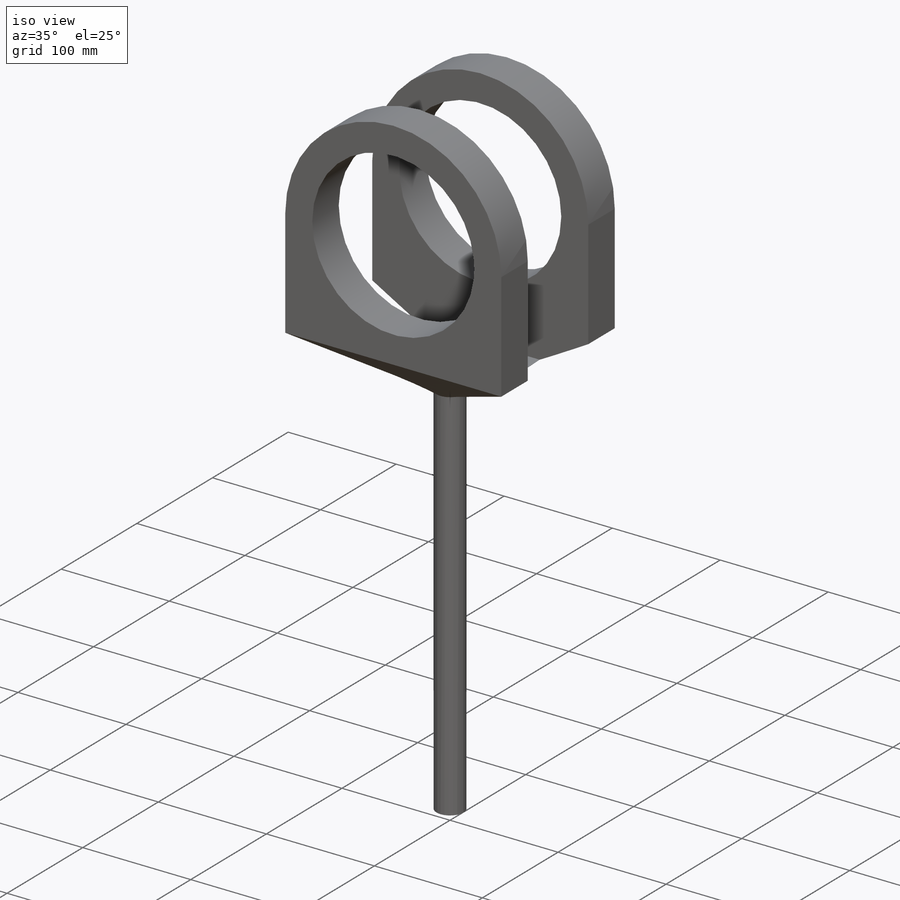
[diagram: iso view]
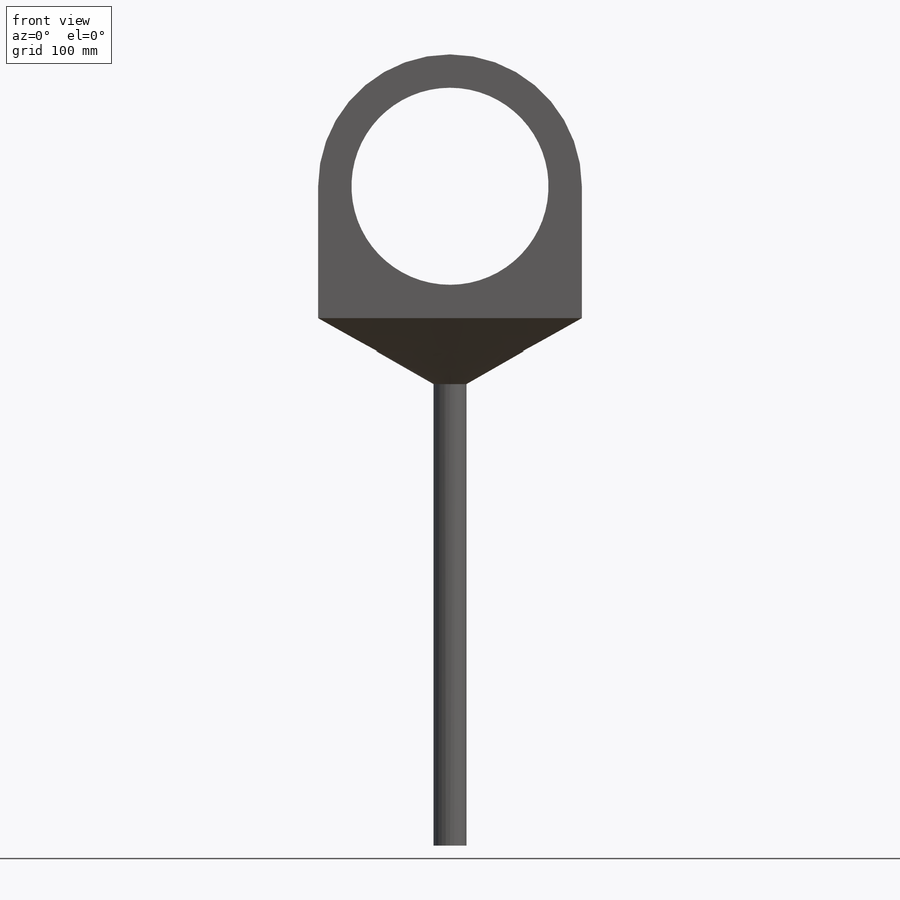
[diagram: front view]
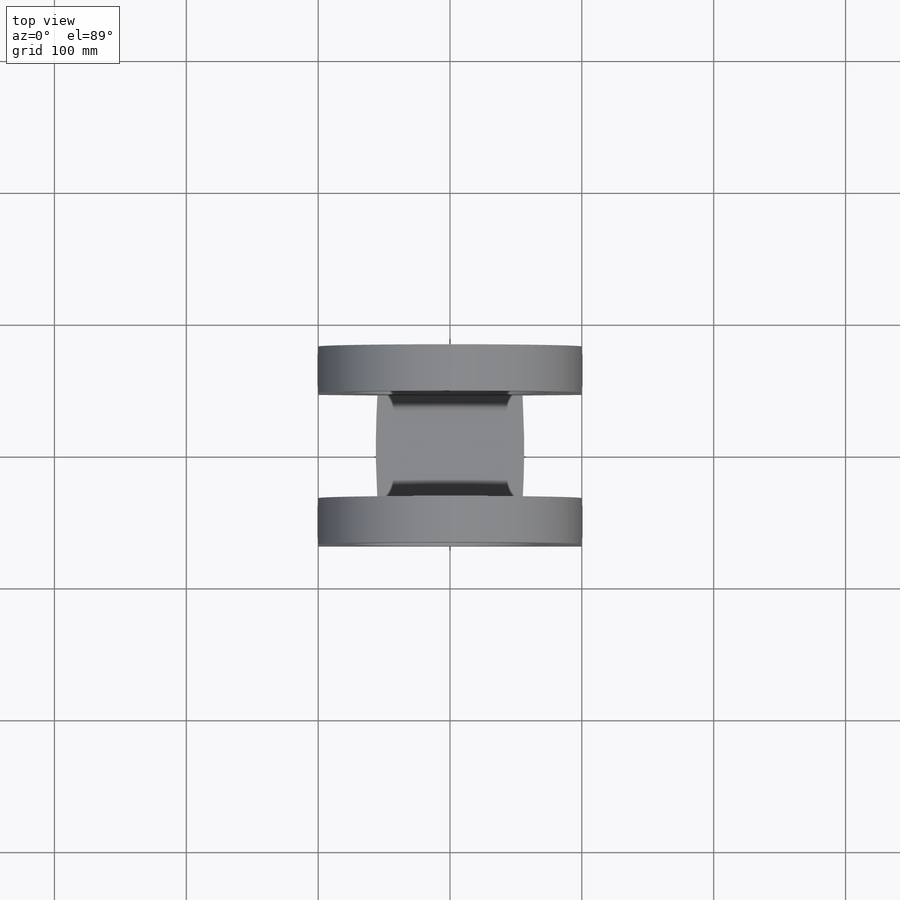
[diagram: top view]
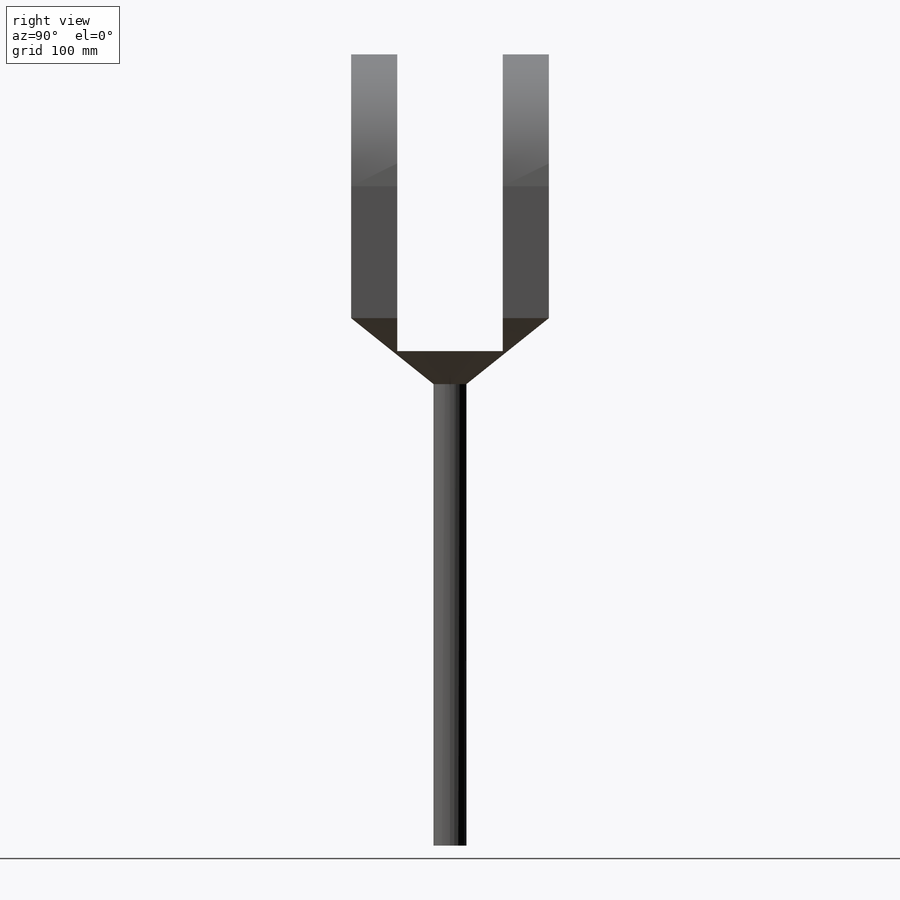
[diagram: right view]
SOLIDWORKS PART (.sldprt)
format: sldprt  version: not decoded by parser v0  size: 232,960 bytes
history: native  units: mm
features: sketch x4, cut_extrude x2, material x1, revolve x1, extrude x1 (+13 scaffold rows collapsed)
feature tree (22):
  scaffold x13  (default folders/planes/origin — collapsed)
  material  "Cast Alloy Steel"
  sketch  "Sketch4"  dims[c1.D1=125.0mm c1.D2=12.5mm c1.D3=125.0mm c1.D4=100.0mm c2.D4=75.0deg c2.D5=500.0mm c2.D6=2000.0mm c2.D1=150.0mm c2.D3=1750.0mm]
  revolve  "Revolve7"  Angle=360deg
  sketch  "Sketch6"  dims[D1=200.0mm]
  extrude  "Boss-Extrude4"  Depth=150mm
  sketch  "Sketch8"  dims[D1=80.0mm D2=40.0mm]
  cut_extrude  "Cut-Extrude2"  Depth=125mm
  sketch  "Sketch9"  dims[D1=150.0mm]
  cut_extrude  "Cut-Extrude3"  [1 undecoded]
decode coverage: 7 of 8 modeling features carry decoded parameters
note: 1 parameter value undecoded
note: suppression state not decoded; provenance and decode notes live in map.json
